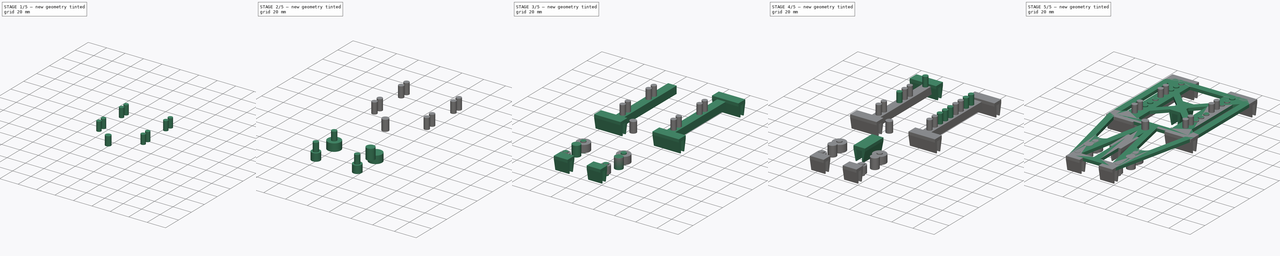
[diagram: build sequence overview — one tinted view per stage of 5, left to right]
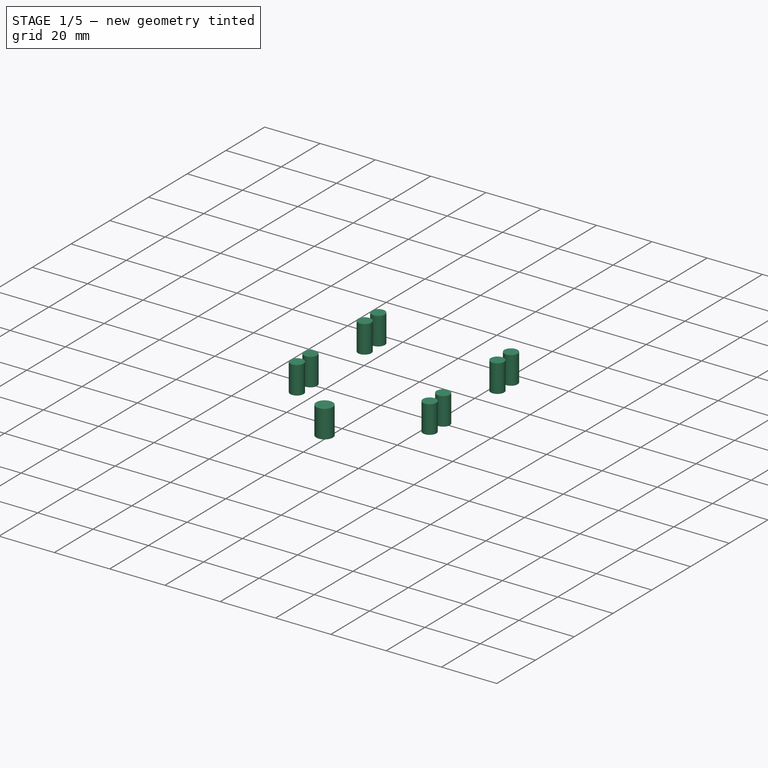
[diagram: stage 1 of 5 — iso view after this stage's code; geometry added in this stage tinted green]
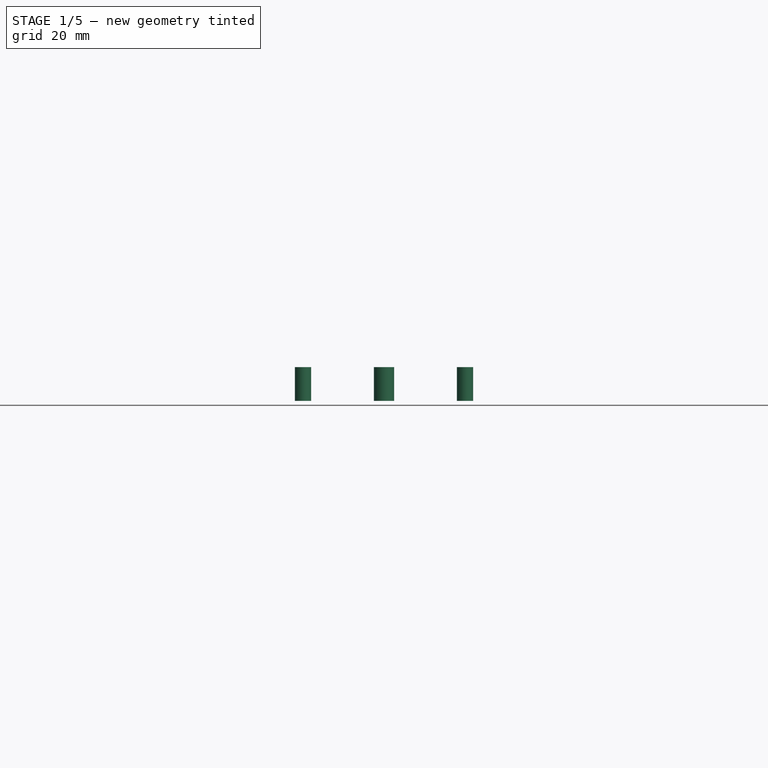
[diagram: stage 1 of 5 — front view after this stage's code; geometry added in this stage tinted green]
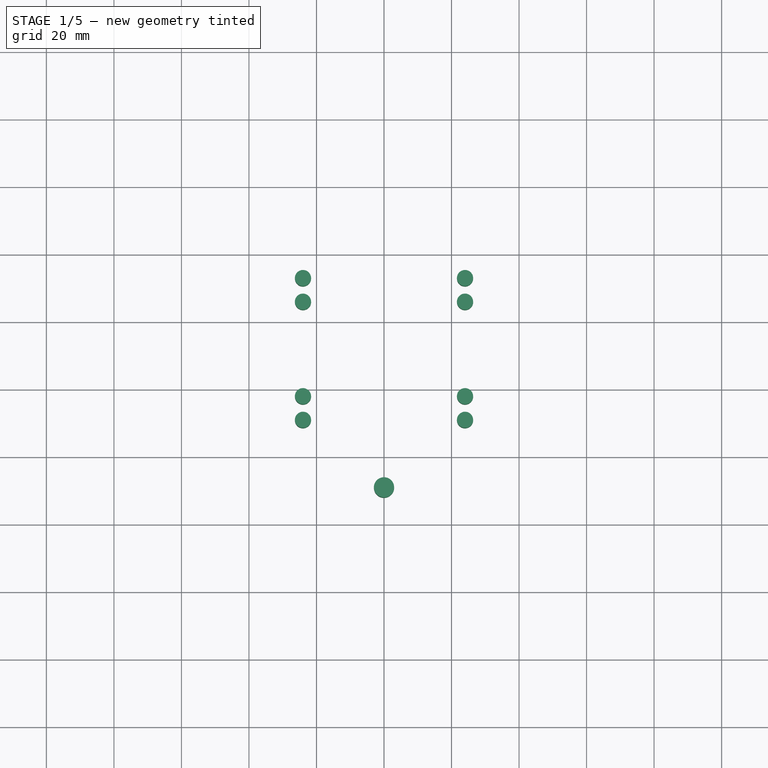
[diagram: stage 1 of 5 — top view after this stage's code; geometry added in this stage tinted green]
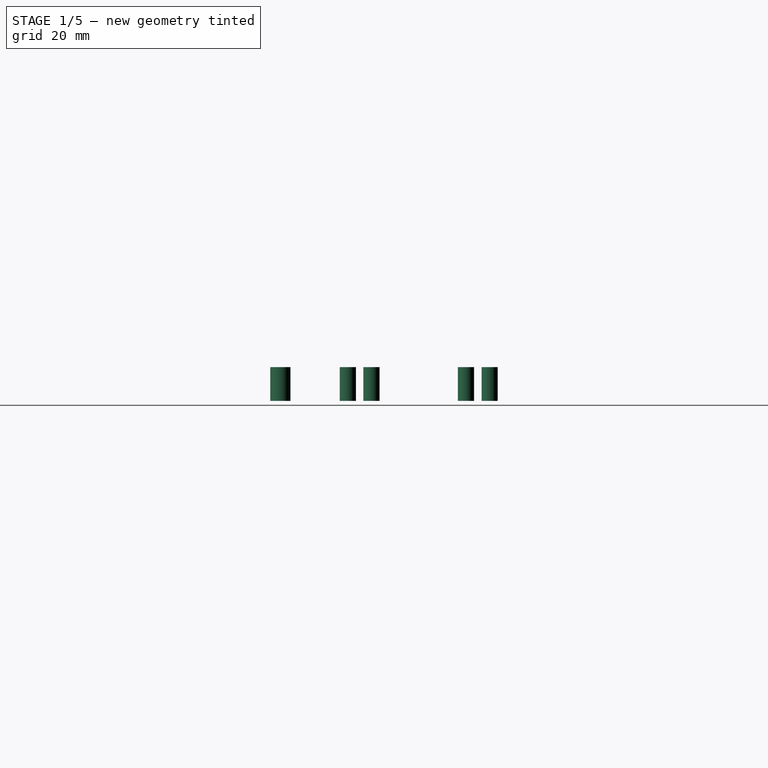
[diagram: stage 1 of 5 — right view after this stage's code; geometry added in this stage tinted green]
FCSTD DOCUMENT  (FreeCAD 0.20R0.20)
Label: 059
License: All rights reserved
LicenseURL: http://en.wikipedia.org/wiki/All_rights_reserved
objects: Part::Cylinder×31, Sketcher::SketchObject×10, Part::Extrusion×10, Part::MultiFuse×3, Part::Box×2
note: 56 computed .brp shape members not serialized (recipe doc carries the construction recipe); baked Part::Feature solids carry a one-line shape summary decoded from their .brp

FEATURE [Part::Cylinder] Cylinder022  label="threadedInsertHole018"
  Angle = 360
  AttacherType = Attacher::AttachEngine3D
  FirstAngle = 0
  Height = 10
  Placement = pos=(40,-9,0) rot=(0,0,1;0rad)
  Radius = 3
  SecondAngle = 0
FEATURE [Part::Cylinder] Cylinder023  label="threadedInsertHole019"
  Angle = 360
  AttacherType = Attacher::AttachEngine3D
  FirstAngle = 0
  Height = 10
  Placement = pos=(64,18,0) rot=(0,0,1;0rad)
  Radius = 2.4
  SecondAngle = 0
FEATURE [Part::Cylinder] Cylinder024  label="threadedInsertHole020"
  Angle = 360
  AttacherType = Attacher::AttachEngine3D
  FirstAngle = 0
  Height = 10
  Placement = pos=(64,46,0) rot=(0,0,1;0rad)
  Radius = 2.4
  SecondAngle = 0
FEATURE [Part::Cylinder] Cylinder025  label="threadedInsertHole021"
  Angle = 360
  AttacherType = Attacher::AttachEngine3D
  FirstAngle = 0
  Height = 10
  Placement = pos=(64,53,0) rot=(0,0,1;0rad)
  Radius = 2.4
  SecondAngle = 0
FEATURE [Part::Cylinder] Cylinder026  label="threadedInsertHole022"
  Angle = 360
  AttacherType = Attacher::AttachEngine3D
  FirstAngle = 0
  Height = 10
  Placement = pos=(16,53,0) rot=(0,0,1;0rad)
  Radius = 2.4
  SecondAngle = 0
FEATURE [Part::Cylinder] Cylinder027  label="threadedInsertHole023"
  Angle = 360
  AttacherType = Attacher::AttachEngine3D
  FirstAngle = 0
  Height = 10
  Placement = pos=(16,46,0) rot=(0,0,1;0rad)
  Radius = 2.4
  SecondAngle = 0
FEATURE [Part::Cylinder] Cylinder028  label="threadedInsertHole024"
  Angle = 360
  AttacherType = Attacher::AttachEngine3D
  FirstAngle = 0
  Height = 10
  Placement = pos=(16,18,0) rot=(0,0,1;0rad)
  Radius = 2.4
  SecondAngle = 0
FEATURE [Part::Cylinder] Cylinder029  label="threadedInsertHole025"
  Angle = 360
  AttacherType = Attacher::AttachEngine3D
  FirstAngle = 0
  Height = 10
  Placement = pos=(16,11,0) rot=(0,0,1;0rad)
  Radius = 2.4
  SecondAngle = 0
FEATURE [Part::Cylinder] Cylinder030  label="threadedInsertHole026"
  Angle = 360
  AttacherType = Attacher::AttachEngine3D
  FirstAngle = 0
  Height = 10
  Placement = pos=(64,11,0) rot=(0,0,1;0rad)
  Radius = 2.4
  SecondAngle = 0
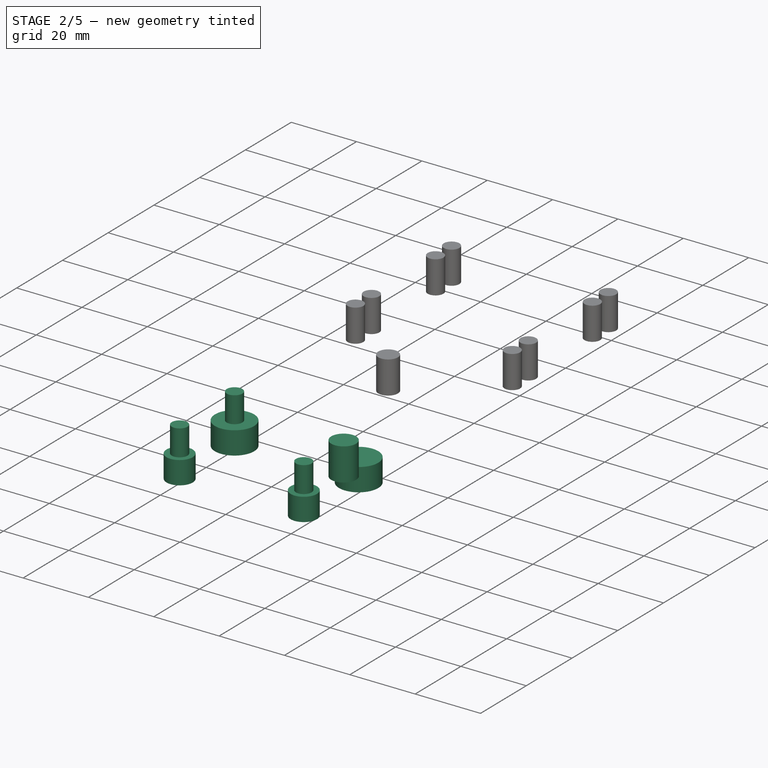
[diagram: stage 2 of 5 — iso view after this stage's code; geometry added in this stage tinted green]
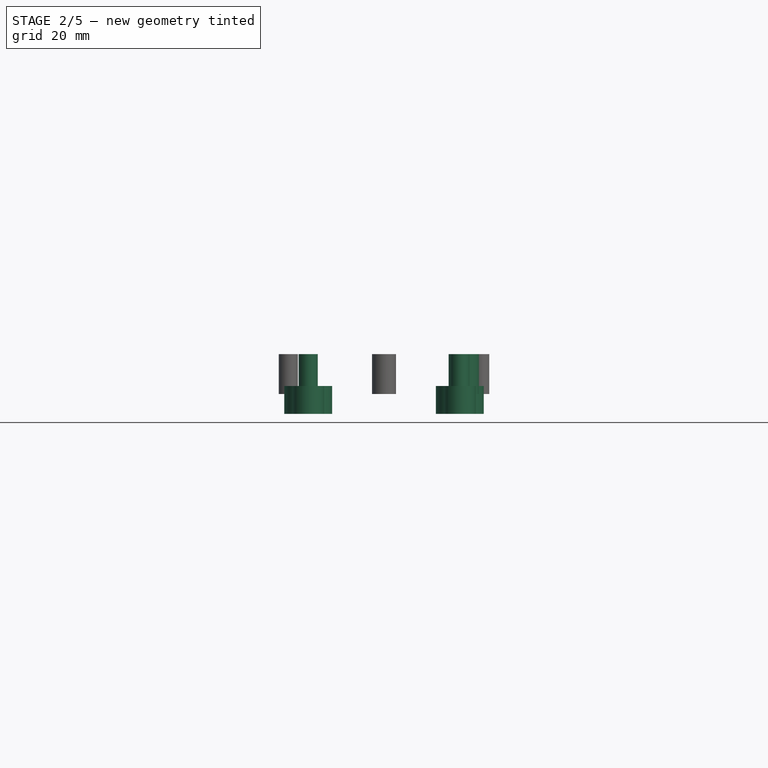
[diagram: stage 2 of 5 — front view after this stage's code; geometry added in this stage tinted green]
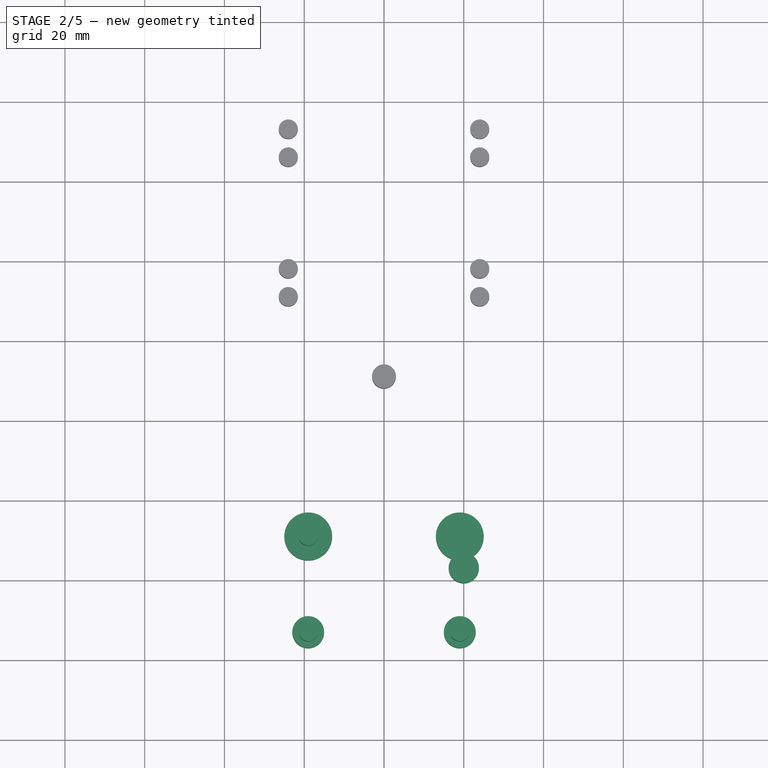
[diagram: stage 2 of 5 — top view after this stage's code; geometry added in this stage tinted green]
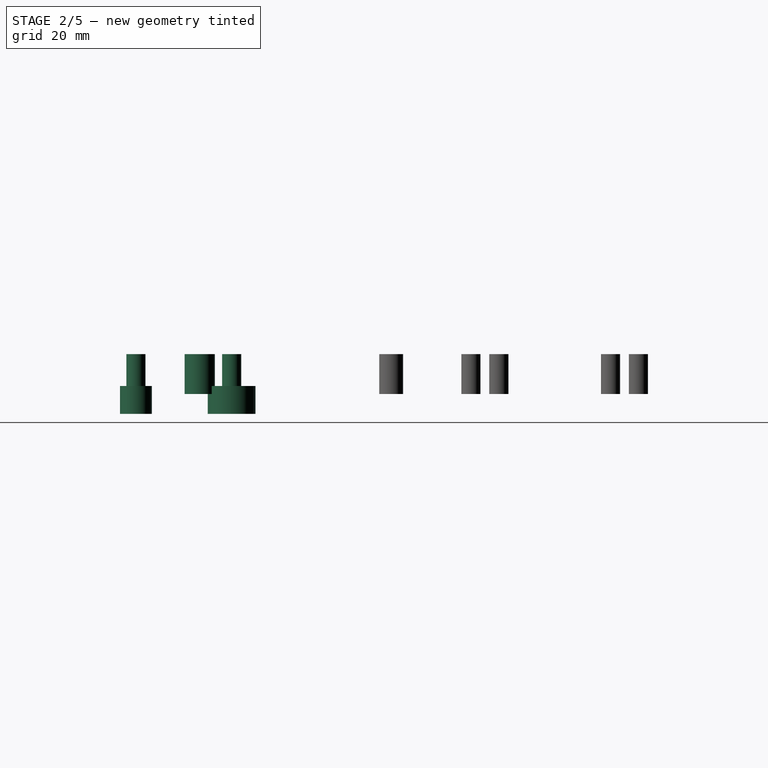
[diagram: stage 2 of 5 — right view after this stage's code; geometry added in this stage tinted green]
FEATURE [Part::Cylinder] Cylinder014  label="threadedInsertHole014"
  Angle = 360
  AttacherType = Attacher::AttachEngine3D
  FirstAngle = 0
  Height = 10
  Placement = pos=(59,-73,0) rot=(0,0,1;0rad)
  Radius = 2.4
  SecondAngle = 0
FEATURE [Part::Cylinder] Cylinder015  label="threadedInsertHole015"
  Angle = 360
  AttacherType = Attacher::AttachEngine3D
  FirstAngle = 0
  Height = 10
  Placement = pos=(21,-73,0) rot=(0,0,1;0rad)
  Radius = 2.4
  SecondAngle = 0
FEATURE [Part::Cylinder] Cylinder016  label="threadedInsertHole016"
  Angle = 360
  AttacherType = Attacher::AttachEngine3D
  FirstAngle = 0
  Height = 10
  Placement = pos=(21,-49,0) rot=(0,0,1;0rad)
  Radius = 2.4
  SecondAngle = 0
FEATURE [Part::Cylinder] Cylinder017  label="threadedInsertHole017"
  Angle = 360
  AttacherType = Attacher::AttachEngine3D
  FirstAngle = 0
  Height = 10
  Placement = pos=(60,-57,0) rot=(0,0,1;0rad)
  Radius = 3.8
  SecondAngle = 0
FEATURE [Part::Cylinder] Cylinder018  label="backThreadedInsertHolder"
  Angle = 360
  AttacherType = Attacher::AttachEngine3D
  FirstAngle = 0
  Height = 7
  Placement = pos=(21,-49,0) rot=(0,0,1;0rad)
  Radius = 6
  SecondAngle = 0
FEATURE [Part::Cylinder] Cylinder019  label="backThreadedInsertHolder001"
  Angle = 360
  AttacherType = Attacher::AttachEngine3D
  FirstAngle = 0
  Height = 7
  Placement = pos=(21,-73,0) rot=(0,0,1;0rad)
  Radius = 4
  SecondAngle = 0
FEATURE [Part::Cylinder] Cylinder020  label="backThreadedInsertHolder002"
  Angle = 360
  AttacherType = Attacher::AttachEngine3D
  FirstAngle = 0
  Height = 7
  Placement = pos=(59,-49,0) rot=(0,0,1;0rad)
  Radius = 6
  SecondAngle = 0
FEATURE [Part::Cylinder] Cylinder021  label="backThreadedInsertHolder003"
  Angle = 360
  AttacherType = Attacher::AttachEngine3D
  FirstAngle = 0
  Height = 7
  Placement = pos=(59,-73,0) rot=(0,0,1;0rad)
  Radius = 4
  SecondAngle = 0
FEATURE [Part::MultiFuse] Fusion002  label="threadedInsertHolders"
  Placement = pos=(0,0,-5) rot=(0,0,1;0rad)
  Shapes = -> [Cylinder018,Cylinder020,Cylinder021,Cylinder019]
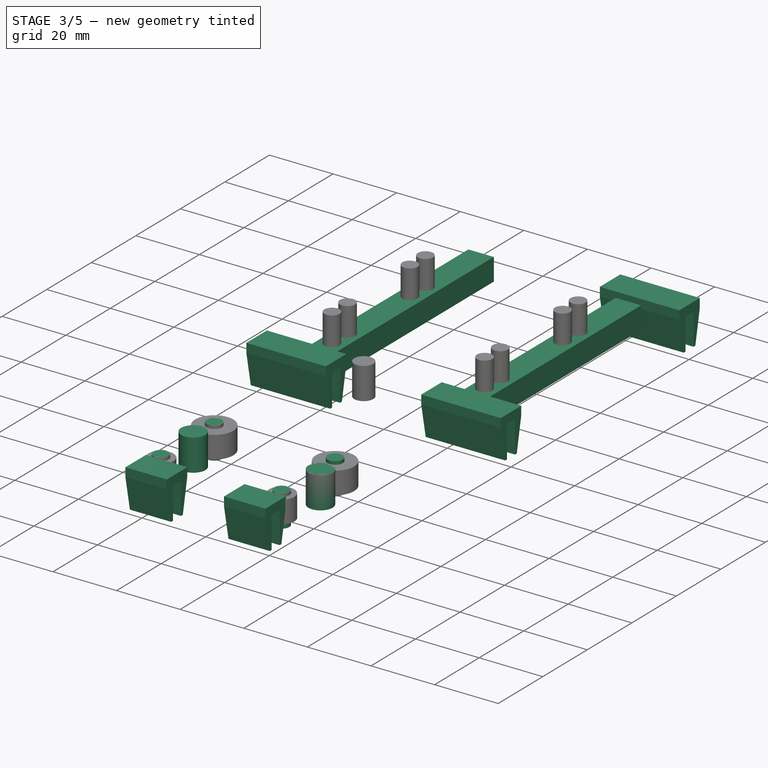
[diagram: stage 3 of 5 — iso view after this stage's code; geometry added in this stage tinted green]
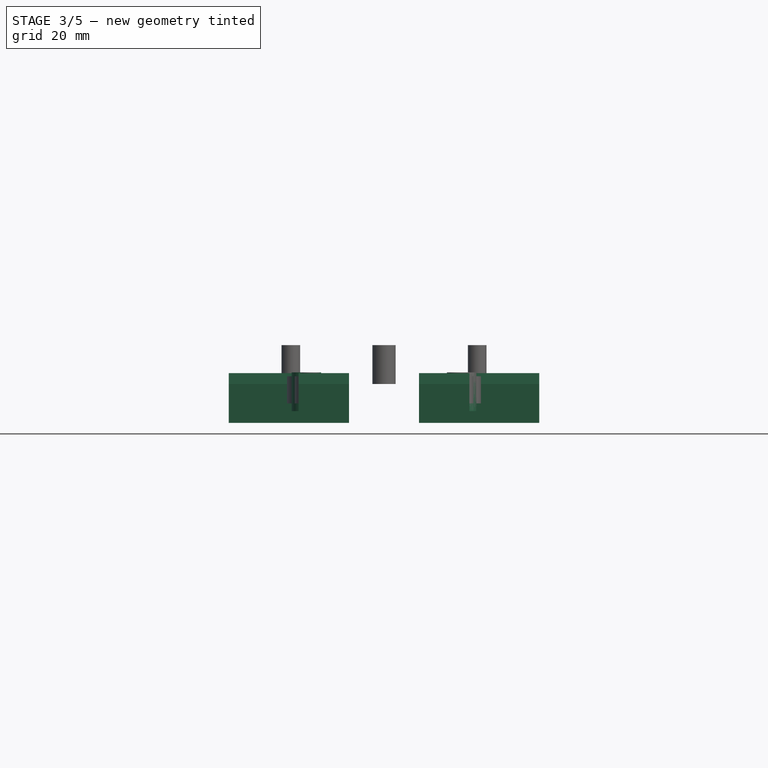
[diagram: stage 3 of 5 — front view after this stage's code; geometry added in this stage tinted green]
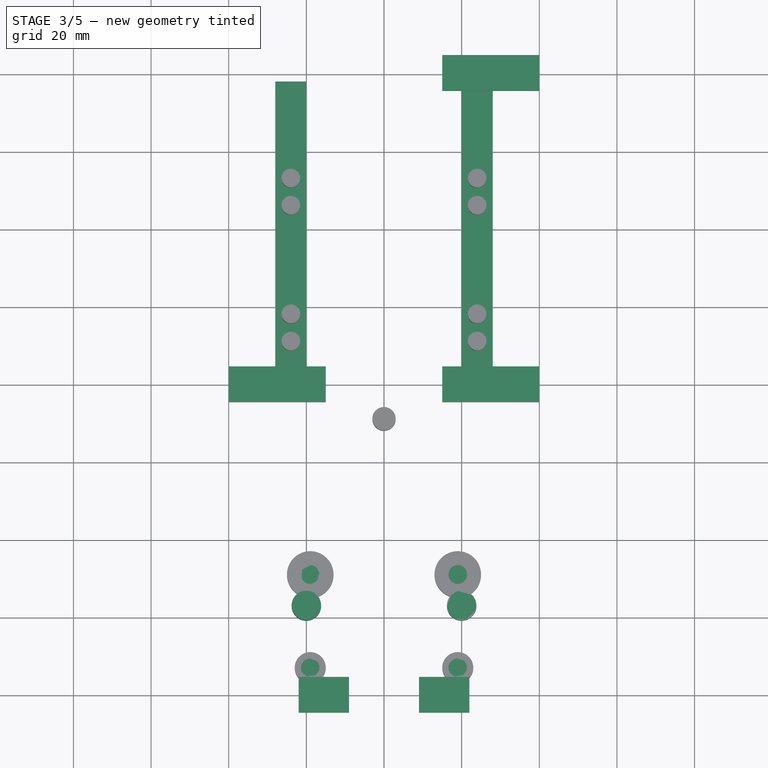
[diagram: stage 3 of 5 — top view after this stage's code; geometry added in this stage tinted green]
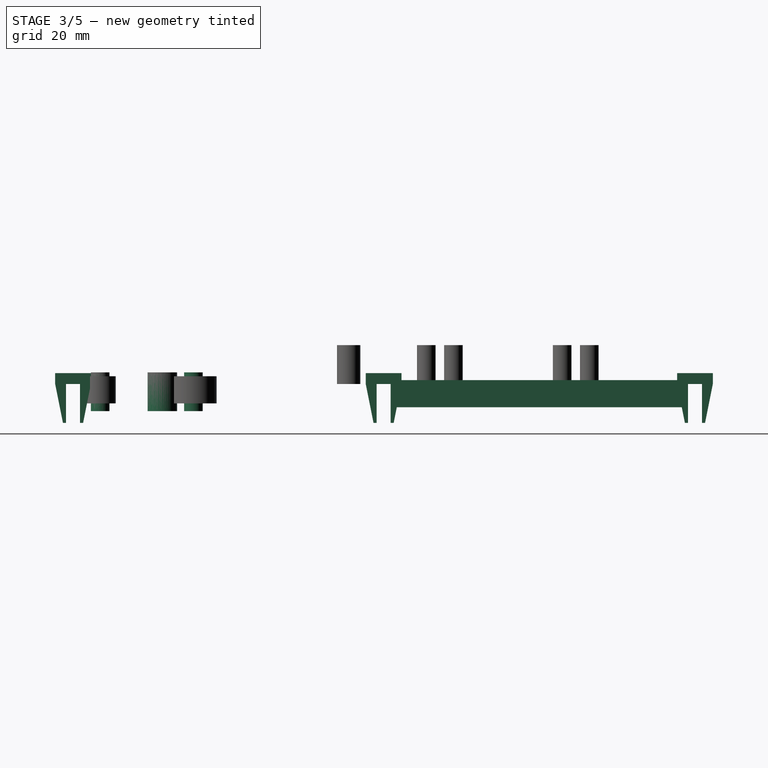
[diagram: stage 3 of 5 — right view after this stage's code; geometry added in this stage tinted green]
FEATURE [Part::Cylinder] Cylinder012  label="threadedInsertHole012"
  Angle = 360
  AttacherType = Attacher::AttachEngine3D
  FirstAngle = 0
  Height = 10
  Placement = pos=(59,-49,0) rot=(0,0,1;0rad)
  Radius = 2.4
  SecondAngle = 0
FEATURE [Part::Cylinder] Cylinder013  label="threadedInsertHole013"
  Angle = 360
  AttacherType = Attacher::AttachEngine3D
  FirstAngle = 0
  Height = 10
  Placement = pos=(20,-57,0) rot=(0,0,1;0rad)
  Radius = 3.8
  SecondAngle = 0
FEATURE [Sketcher::SketchObject] Sketch015
  FullyConstrained = true
  Placement = pos=(0,0,0) rot=(1,0,0;1.5708rad)
  sketch-geometry (10):
    g0: LineSegment StartX=5 StartY=-14 StartZ=0 EndX=8.6 EndY=-14 EndZ=0
    g1: LineSegment StartX=5 StartY=-14 StartZ=0 EndX=5 EndY=-24 EndZ=0
    g2: LineSegment StartX=8.6 StartY=-14 StartZ=0 EndX=8.6 EndY=-24 EndZ=0
    g3: LineSegment StartX=2.2 StartY=-11.2 StartZ=0 EndX=11.4 EndY=-11.2 EndZ=0
    g4: LineSegment StartX=5 StartY=-24 StartZ=0 EndX=4.2 EndY=-24 EndZ=0
    g5: LineSegment StartX=8.6 StartY=-24 StartZ=0 EndX=9.4 EndY=-24 EndZ=0
    g6: LineSegment StartX=2.2 StartY=-14 StartZ=0 EndX=2.2 EndY=-11.2 EndZ=0
    g7: LineSegment StartX=11.4 StartY=-14 StartZ=0 EndX=11.4 EndY=-11.2 EndZ=0
    g8: LineSegment StartX=2.2 StartY=-14 StartZ=0 EndX=4.2 EndY=-24 EndZ=0
    g9: LineSegment StartX=9.4 StartY=-24 StartZ=0 EndX=11.4 EndY=-14 EndZ=0
  constraints (26):
    c: Horizontal(g0)
    c: Block(g0)
    c: Distance(g0) = 3.6
    c: Coincident(g1,g0)
    c: Vertical(g1)
    c: Distance(g1) = 10
    c: Coincident(g2,g0)
    c: Vertical(g2)
    c: Distance(g2) = 10
    c: Horizontal(g3)
    c: Coincident(g4,g1)
    c: Horizontal(g4)
    c: Coincident(g5,g2)
    c: Horizontal(g5)
    c: Distance(g4) = 0.8
    c: Distance(g5) = 0.8
    c: Vertical(g6)
    c: Vertical(g7)
    c: Coincident(g8,g4)
    c: Coincident(g9,g5)
    c: Coincident(g3,g6)
    c: Coincident(g3,g7)
    c: Block(g7)
    c: Block(g6)
    c: Block(g8)
    c: Block(g9)
FEATURE [Part::Extrusion] Extrude015  label="hullBrace013"
  Base = -> Sketch015
  Dir = (0,-1,2e-16)
  DirMode = 2
  FaceMakerClass = Part::FaceMakerBullseye
  LengthFwd = 13
  LengthRev = 0
  Placement = pos=(18,-86.8,14) rot=(0,0,1;1.5708rad)
  Solid = true
  Symmetric = false
FEATURE [Sketcher::SketchObject] Sketch016
  FullyConstrained = true
  Placement = pos=(0,0,0) rot=(1,0,0;1.5708rad)
  sketch-geometry (10):
    g0: LineSegment StartX=5 StartY=-14 StartZ=0 EndX=8.6 EndY=-14 EndZ=0
    g1: LineSegment StartX=5 StartY=-14 StartZ=0 EndX=5 EndY=-24 EndZ=0
    g2: LineSegment StartX=8.6 StartY=-14 StartZ=0 EndX=8.6 EndY=-24 EndZ=0
    g3: LineSegment StartX=2.2 StartY=-11.2 StartZ=0 EndX=11.4 EndY=-11.2 EndZ=0
    g4: LineSegment StartX=5 StartY=-24 StartZ=0 EndX=4.2 EndY=-24 EndZ=0
    g5: LineSegment StartX=8.6 StartY=-24 StartZ=0 EndX=9.4 EndY=-24 EndZ=0
    g6: LineSegment StartX=2.2 StartY=-14 StartZ=0 EndX=2.2 EndY=-11.2 EndZ=0
    g7: LineSegment StartX=11.4 StartY=-14 StartZ=0 EndX=11.4 EndY=-11.2 EndZ=0
    g8: LineSegment StartX=2.2 StartY=-14 StartZ=0 EndX=4.2 EndY=-24 EndZ=0
    g9: LineSegment StartX=9.4 StartY=-24 StartZ=0 EndX=11.4 EndY=-14 EndZ=0
  constraints (26):
    c: Horizontal(g0)
    c: Block(g0)
    c: Distance(g0) = 3.6
    c: Coincident(g1,g0)
    c: Vertical(g1)
    c: Distance(g1) = 10
    c: Coincident(g2,g0)
    c: Vertical(g2)
    c: Distance(g2) = 10
    c: Horizontal(g3)
    c: Coincident(g4,g1)
    c: Horizontal(g4)
    c: Coincident(g5,g2)
    c: Horizontal(g5)
    c: Distance(g4) = 0.8
    c: Distance(g5) = 0.8
    c: Vertical(g6)
    c: Vertical(g7)
    c: Coincident(g8,g4)
    c: Coincident(g9,g5)
    c: Coincident(g3,g6)
    c: Coincident(g3,g7)
    c: Block(g7)
    c: Block(g6)
    c: Block(g8)
    c: Block(g9)
FEATURE [Part::Extrusion] Extrude016  label="hullBrace014"
  Base = -> Sketch016
  Dir = (0,-1,2e-16)
  DirMode = 2
  FaceMakerClass = Part::FaceMakerBullseye
  LengthFwd = 13
  LengthRev = 0
  Placement = pos=(49,-86.8,14) rot=(0,0,1;1.5708rad)
  Solid = true
  Symmetric = false
FEATURE [Sketcher::SketchObject] Sketch017
  FullyConstrained = true
  Placement = pos=(0,0,0) rot=(1,0,0;1.5708rad)
  sketch-geometry (10):
    g0: LineSegment StartX=5 StartY=-14 StartZ=0 EndX=8.6 EndY=-14 EndZ=0
    g1: LineSegment StartX=5 StartY=-14 StartZ=0 EndX=5 EndY=-24 EndZ=0
    g2: LineSegment StartX=8.6 StartY=-14 StartZ=0 EndX=8.6 EndY=-24 EndZ=0
    g3: LineSegment StartX=2.2 StartY=-11.2 StartZ=0 EndX=11.4 EndY=-11.2 EndZ=0
    g4: LineSegment StartX=5 StartY=-24 StartZ=0 EndX=4.2 EndY=-24 EndZ=0
    g5: LineSegment StartX=8.6 StartY=-24 StartZ=0 EndX=9.4 EndY=-24 EndZ=0
    g6: LineSegment StartX=2.2 StartY=-14 StartZ=0 EndX=2.2 EndY=-11.2 EndZ=0
    g7: LineSegment StartX=11.4 StartY=-14 StartZ=0 EndX=11.4 EndY=-11.2 EndZ=0
    g8: LineSegment StartX=2.2 StartY=-14 StartZ=0 EndX=4.2 EndY=-24 EndZ=0
    g9: LineSegment StartX=9.4 StartY=-24 StartZ=0 EndX=11.4 EndY=-14 EndZ=0
  constraints (26):
    c: Horizontal(g0)
    c: Block(g0)
    c: Distance(g0) = 3.6
    c: Coincident(g1,g0)
    c: Vertical(g1)
    c: Distance(g1) = 10
    c: Coincident(g2,g0)
    c: Vertical(g2)
    c: Distance(g2) = 10
    c: Horizontal(g3)
    c: Coincident(g4,g1)
    c: Horizontal(g4)
    c: Coincident(g5,g2)
    c: Horizontal(g5)
    c: Distance(g4) = 0.8
    c: Distance(g5) = 0.8
    c: Vertical(g6)
    c: Vertical(g7)
    c: Coincident(g8,g4)
    c: Coincident(g9,g5)
    c: Coincident(g3,g6)
    c: Coincident(g3,g7)
    c: Block(g7)
    c: Block(g6)
    c: Block(g8)
    c: Block(g9)
FEATURE [Part::Extrusion] Extrude017  label="hullBrace015"
  Base = -> Sketch017
  Dir = (0,-1,2e-16)
  DirMode = 2
  FaceMakerClass = Part::FaceMakerBullseye
  LengthFwd = 25
  LengthRev = 0
  Placement = pos=(55,-6.8,14) rot=(0,0,1;1.5708rad)
  Solid = true
  Symmetric = false
FEATURE [Sketcher::SketchObject] Sketch018
  FullyConstrained = true
  Placement = pos=(0,0,0) rot=(1,0,0;1.5708rad)
  sketch-geometry (10):
    g0: LineSegment StartX=5 StartY=-14 StartZ=0 EndX=8.6 EndY=-14 EndZ=0
    g1: LineSegment StartX=5 StartY=-14 StartZ=0 EndX=5 EndY=-24 EndZ=0
    g2: LineSegment StartX=8.6 StartY=-14 StartZ=0 EndX=8.6 EndY=-24 EndZ=0
    g3: LineSegment StartX=2.2 StartY=-11.2 StartZ=0 EndX=11.4 EndY=-11.2 EndZ=0
    g4: LineSegment StartX=5 StartY=-24 StartZ=0 EndX=4.2 EndY=-24 EndZ=0
    g5: LineSegment StartX=8.6 StartY=-24 StartZ=0 EndX=9.4 EndY=-24 EndZ=0
    g6: LineSegment StartX=2.2 StartY=-14 StartZ=0 EndX=2.2 EndY=-11.2 EndZ=0
    g7: LineSegment StartX=11.4 StartY=-14 StartZ=0 EndX=11.4 EndY=-11.2 EndZ=0
    g8: LineSegment StartX=2.2 StartY=-14 StartZ=0 EndX=4.2 EndY=-24 EndZ=0
    g9: LineSegment StartX=9.4 StartY=-24 StartZ=0 EndX=11.4 EndY=-14 EndZ=0
  constraints (26):
    c: Horizontal(g0)
    c: Block(g0)
    c: Distance(g0) = 3.6
    c: Coincident(g1,g0)
    c: Vertical(g1)
    c: Distance(g1) = 10
    c: Coincident(g2,g0)
    c: Vertical(g2)
    c: Distance(g2) = 10
    c: Horizontal(g3)
    c: Coincident(g4,g1)
    c: Horizontal(g4)
    c: Coincident(g5,g2)
    c: Horizontal(g5)
    c: Distance(g4) = 0.8
    c: Distance(g5) = 0.8
    c: Vertical(g6)
    c: Vertical(g7)
    c: Coincident(g8,g4)
    c: Coincident(g9,g5)
    c: Coincident(g3,g6)
    c: Coincident(g3,g7)
    c: Block(g7)
    c: Block(g6)
    c: Block(g8)
    c: Block(g9)
FEATURE [Part::Extrusion] Extrude018  label="hullBrace016"
  Base = -> Sketch018
  Dir = (0,-1,2e-16)
  DirMode = 2
  FaceMakerClass = Part::FaceMakerBullseye
  LengthFwd = 25
  LengthRev = 0
  Placement = pos=(0,-6.8,14) rot=(0,0,1;1.5708rad)
  Solid = true
  Symmetric = false
FEATURE [Sketcher::SketchObject] Sketch019
  FullyConstrained = true
  Placement = pos=(0,0,0) rot=(1,0,0;1.5708rad)
  sketch-geometry (10):
    g0: LineSegment StartX=5 StartY=-14 StartZ=0 EndX=8.6 EndY=-14 EndZ=0
    g1: LineSegment StartX=5 StartY=-14 StartZ=0 EndX=5 EndY=-24 EndZ=0
    g2: LineSegment StartX=8.6 StartY=-14 StartZ=0 EndX=8.6 EndY=-24 EndZ=0
    g3: LineSegment StartX=2.2 StartY=-11.2 StartZ=0 EndX=11.4 EndY=-11.2 EndZ=0
    g4: LineSegment StartX=5 StartY=-24 StartZ=0 EndX=4.2 EndY=-24 EndZ=0
    g5: LineSegment StartX=8.6 StartY=-24 StartZ=0 EndX=9.4 EndY=-24 EndZ=0
    g6: LineSegment StartX=2.2 StartY=-14 StartZ=0 EndX=2.2 EndY=-11.2 EndZ=0
    g7: LineSegment StartX=11.4 StartY=-14 StartZ=0 EndX=11.4 EndY=-11.2 EndZ=0
    g8: LineSegment StartX=2.2 StartY=-14 StartZ=0 EndX=4.2 EndY=-24 EndZ=0
    g9: LineSegment StartX=9.4 StartY=-24 StartZ=0 EndX=11.4 EndY=-14 EndZ=0
  constraints (26):
    c: Horizontal(g0)
    c: Block(g0)
    c: Distance(g0) = 3.6
    c: Coincident(g1,g0)
    c: Vertical(g1)
    c: Distance(g1) = 10
    c: Coincident(g2,g0)
    c: Vertical(g2)
    c: Distance(g2) = 10
    c: Horizontal(g3)
    c: Coincident(g4,g1)
    c: Horizontal(g4)
    c: Coincident(g5,g2)
    c: Horizontal(g5)
    c: Distance(g4) = 0.8
    c: Distance(g5) = 0.8
    c: Vertical(g6)
    c: Vertical(g7)
    c: Coincident(g8,g4)
    c: Coincident(g9,g5)
    c: Coincident(g3,g6)
    c: Coincident(g3,g7)
    c: Block(g7)
    c: Block(g6)
    c: Block(g8)
    c: Block(g9)
FEATURE [Part::Extrusion] Extrude019  label="hullBrace017"
  Base = -> Sketch019
  Dir = (0,-1,2e-16)
  DirMode = 2
  FaceMakerClass = Part::FaceMakerBullseye
  LengthFwd = 25
  LengthRev = 0
  Placement = pos=(55,73.4,14) rot=(0,0,1;1.5708rad)
  Solid = true
  Symmetric = false
FEATURE [Part::Box] Box  label="screwHoleAndStrut"
  AttacherType = Attacher::AttachEngine3D
  Height = 7
  Length = 8
  Placement = pos=(12,3,-6) rot=(0,0,1;0rad)
  Width = 75
FEATURE [Part::Box] Box001  label="screwHoleAndStrut001"
  AttacherType = Attacher::AttachEngine3D
  Height = 7
  Length = 8
  Placement = pos=(60,3,-6) rot=(0,0,1;0rad)
  Width = 75
FEATURE [Part::MultiFuse] Fusion001  label="threadedInsertHoleAndWeaightSavingHole"
  Placement = pos=(0,0,-7) rot=(0,0,1;0rad)
  Shapes = -> [Cylinder016,Cylinder013,Cylinder015,Cylinder014,Cylinder017,Cylinder012]
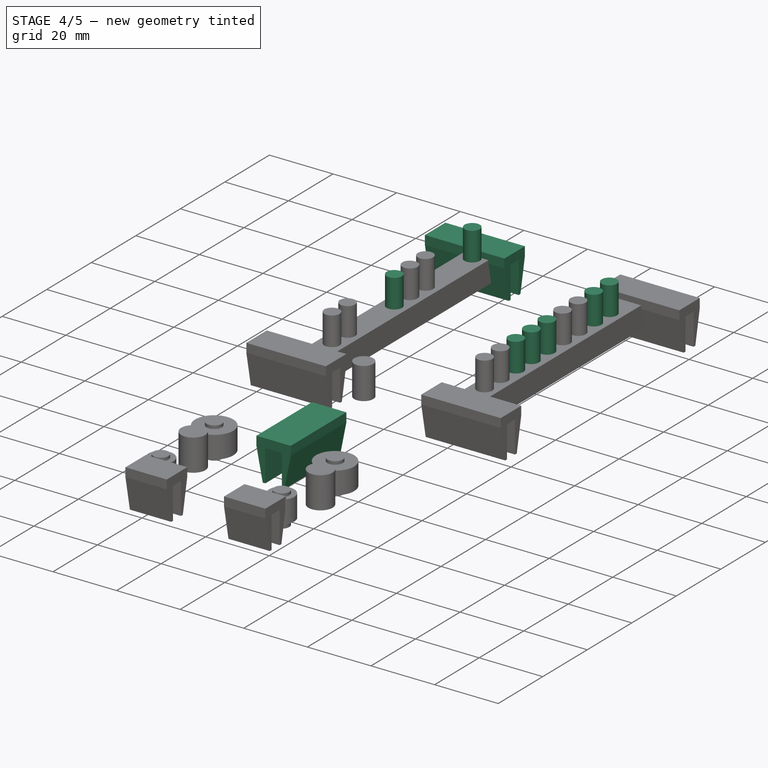
[diagram: stage 4 of 5 — iso view after this stage's code; geometry added in this stage tinted green]
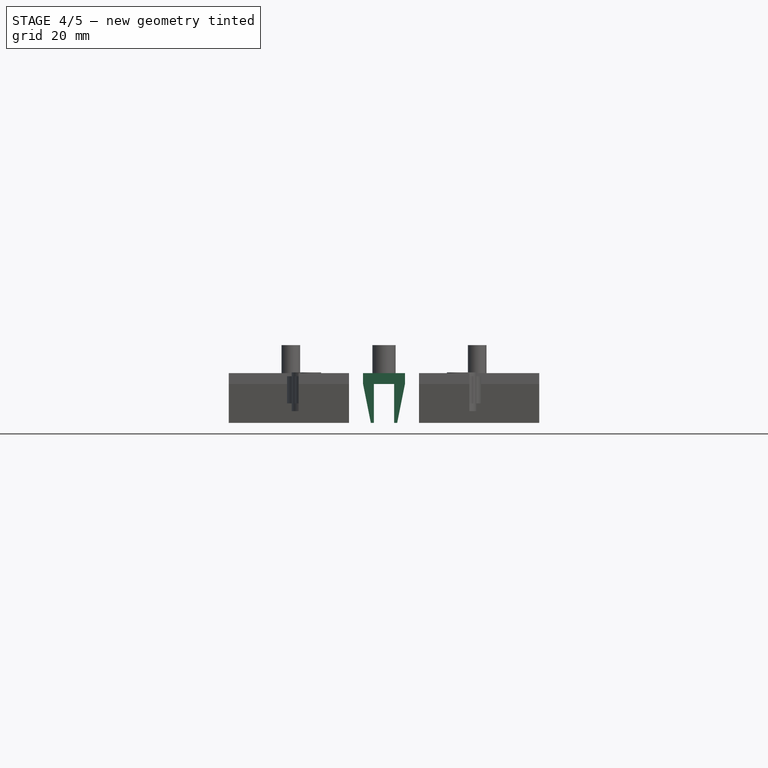
[diagram: stage 4 of 5 — front view after this stage's code; geometry added in this stage tinted green]
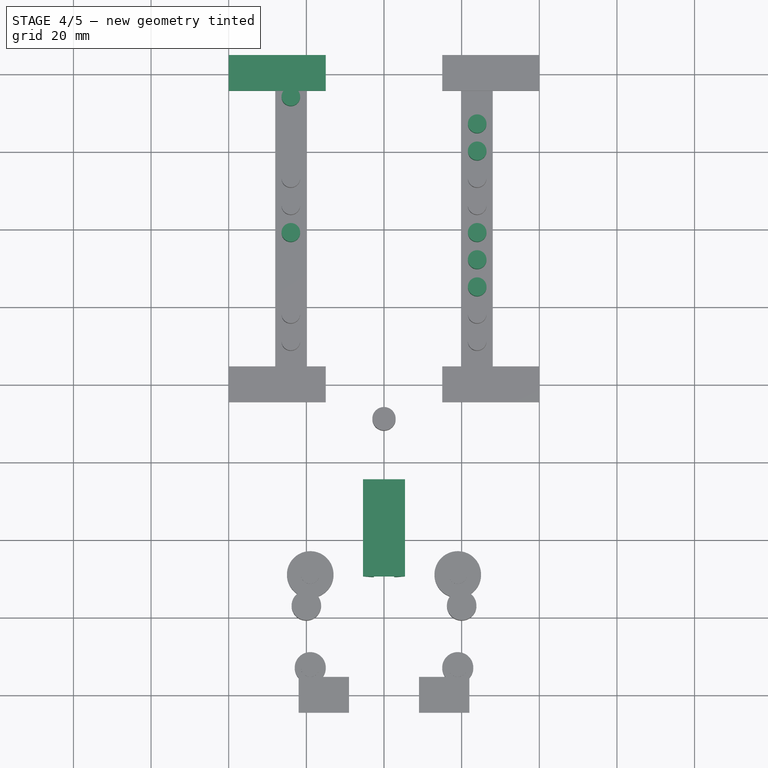
[diagram: stage 4 of 5 — top view after this stage's code; geometry added in this stage tinted green]
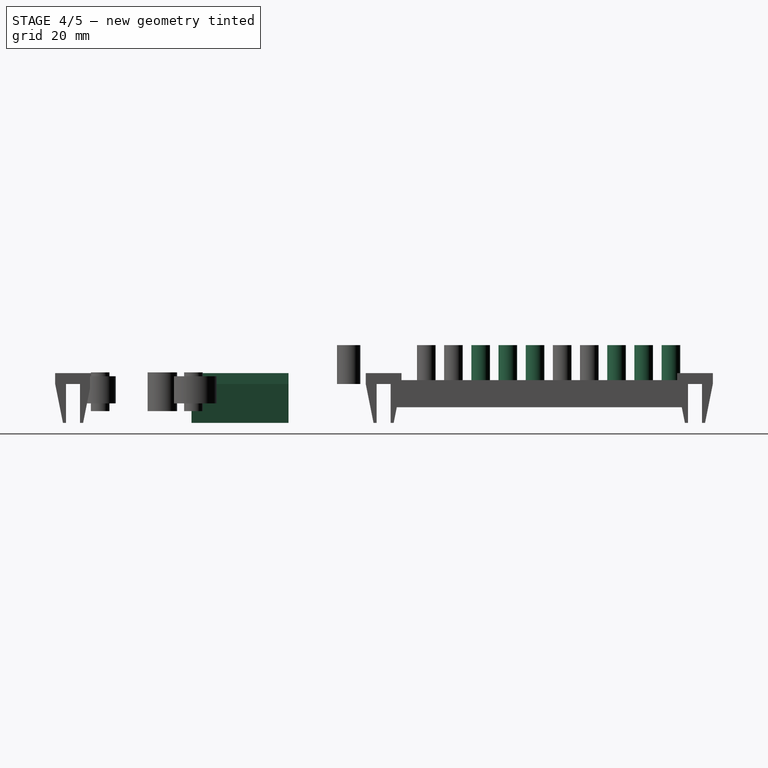
[diagram: stage 4 of 5 — right view after this stage's code; geometry added in this stage tinted green]
FEATURE [Part::Cylinder] Cylinder005  label="threadedInsertHole005"
  Angle = 360
  AttacherType = Attacher::AttachEngine3D
  FirstAngle = 0
  Height = 10
  Placement = pos=(16,39,0) rot=(0,0,1;0rad)
  Radius = 2.4
  SecondAngle = 0
FEATURE [Part::Cylinder] Cylinder006  label="threadedInsertHole006"
  Angle = 360
  AttacherType = Attacher::AttachEngine3D
  FirstAngle = 0
  Height = 10
  Placement = pos=(16,74,0) rot=(0,0,1;0rad)
  Radius = 2.4
  SecondAngle = 0
FEATURE [Part::Cylinder] Cylinder007  label="threadedInsertHole007"
  Angle = 360
  AttacherType = Attacher::AttachEngine3D
  FirstAngle = 0
  Height = 10
  Placement = pos=(64,67,0) rot=(0,0,1;0rad)
  Radius = 2.4
  SecondAngle = 0
FEATURE [Part::Cylinder] Cylinder008  label="threadedInsertHole008"
  Angle = 360
  AttacherType = Attacher::AttachEngine3D
  FirstAngle = 0
  Height = 10
  Placement = pos=(64,60,0) rot=(0,0,1;0rad)
  Radius = 2.4
  SecondAngle = 0
FEATURE [Part::Cylinder] Cylinder009  label="threadedInsertHole009"
  Angle = 360
  AttacherType = Attacher::AttachEngine3D
  FirstAngle = 0
  Height = 10
  Placement = pos=(64,39,0) rot=(0,0,1;0rad)
  Radius = 2.4
  SecondAngle = 0
FEATURE [Part::Cylinder] Cylinder010  label="threadedInsertHole010"
  Angle = 360
  AttacherType = Attacher::AttachEngine3D
  FirstAngle = 0
  Height = 10
  Placement = pos=(64,32,0) rot=(0,0,1;0rad)
  Radius = 2.4
  SecondAngle = 0
FEATURE [Part::Cylinder] Cylinder011  label="threadedInsertHole011"
  Angle = 360
  AttacherType = Attacher::AttachEngine3D
  FirstAngle = 0
  Height = 10
  Placement = pos=(64,25,0) rot=(0,0,1;0rad)
  Radius = 2.4
  SecondAngle = 0
FEATURE [Sketcher::SketchObject] Sketch013
  FullyConstrained = true
  Placement = pos=(0,0,0) rot=(1,0,0;1.5708rad)
  sketch-geometry (10):
    g0: LineSegment StartX=5 StartY=-14 StartZ=0 EndX=8.6 EndY=-14 EndZ=0
    g1: LineSegment StartX=5 StartY=-14 StartZ=0 EndX=5 EndY=-24 EndZ=0
    g2: LineSegment StartX=8.6 StartY=-14 StartZ=0 EndX=8.6 EndY=-24 EndZ=0
    g3: LineSegment StartX=2.2 StartY=-11.2 StartZ=0 EndX=11.4 EndY=-11.2 EndZ=0
    g4: LineSegment StartX=5 StartY=-24 StartZ=0 EndX=4.2 EndY=-24 EndZ=0
    g5: LineSegment StartX=8.6 StartY=-24 StartZ=0 EndX=9.4 EndY=-24 EndZ=0
    g6: LineSegment StartX=2.2 StartY=-14 StartZ=0 EndX=2.2 EndY=-11.2 EndZ=0
    g7: LineSegment StartX=11.4 StartY=-14 StartZ=0 EndX=11.4 EndY=-11.2 EndZ=0
    g8: LineSegment StartX=2.2 StartY=-14 StartZ=0 EndX=4.2 EndY=-24 EndZ=0
    g9: LineSegment StartX=9.4 StartY=-24 StartZ=0 EndX=11.4 EndY=-14 EndZ=0
  constraints (26):
    c: Horizontal(g0)
    c: Block(g0)
    c: Distance(g0) = 3.6
    c: Coincident(g1,g0)
    c: Vertical(g1)
    c: Distance(g1) = 10
    c: Coincident(g2,g0)
    c: Vertical(g2)
    c: Distance(g2) = 10
    c: Horizontal(g3)
    c: Coincident(g4,g1)
    c: Horizontal(g4)
    c: Coincident(g5,g2)
    c: Horizontal(g5)
    c: Distance(g4) = 0.8
    c: Distance(g5) = 0.8
    c: Vertical(g6)
    c: Vertical(g7)
    c: Coincident(g8,g4)
    c: Coincident(g9,g5)
    c: Coincident(g3,g6)
    c: Coincident(g3,g7)
    c: Block(g7)
    c: Block(g6)
    c: Block(g8)
    c: Block(g9)
FEATURE [Part::Extrusion] Extrude013  label="hullBrace011"
  Base = -> Sketch013
  Dir = (0,-1,2e-16)
  DirMode = 2
  FaceMakerClass = Part::FaceMakerBullseye
  LengthFwd = 25
  LengthRev = 0
  Placement = pos=(0,73.4,14) rot=(0,0,1;1.5708rad)
  Solid = true
  Symmetric = false
FEATURE [Sketcher::SketchObject] Sketch014
  FullyConstrained = true
  Placement = pos=(0,0,0) rot=(1,0,0;1.5708rad)
  sketch-geometry (10):
    g0: LineSegment StartX=5.2 StartY=-14 StartZ=0 EndX=10.4 EndY=-14 EndZ=0
    g1: LineSegment StartX=10.4 StartY=-14 StartZ=0 EndX=10.4 EndY=-24 EndZ=0
    g2: LineSegment StartX=5.2 StartY=-14 StartZ=0 EndX=5.2 EndY=-24 EndZ=0
    g3: LineSegment StartX=10.4 StartY=-24 StartZ=0 EndX=11.2 EndY=-24 EndZ=0
    g4: LineSegment StartX=5.2 StartY=-24 StartZ=0 EndX=4.4 EndY=-24 EndZ=0
    g5: LineSegment StartX=13.2 StartY=-14 StartZ=0 EndX=13.2 EndY=-11.2 EndZ=0
    g6: LineSegment StartX=2.4 StartY=-14 StartZ=0 EndX=2.4 EndY=-11.2 EndZ=0
    g7: LineSegment StartX=13.2 StartY=-11.2 StartZ=0 EndX=2.4 EndY=-11.2 EndZ=0
    g8: LineSegment StartX=2.4 StartY=-14 StartZ=0 EndX=4.4 EndY=-24 EndZ=0
    g9: LineSegment StartX=13.2 StartY=-14 StartZ=0 EndX=11.2 EndY=-24 EndZ=0
  constraints (26):
    c: Horizontal(g0)
    c: Block(g0)
    c: Coincident(g1,g0)
    c: Vertical(g1)
    c: Coincident(g2,g0)
    c: Vertical(g2)
    c: Distance(g2) = 10
    c: Distance(g1) = 10
    c: Coincident(g3,g1)
    c: Horizontal(g3)
    c: Coincident(g4,g2)
    c: Horizontal(g4)
    c: Distance(g4) = 0.8
    c: Distance(g3) = 0.8
    c: Vertical(g5)
    c: Distance(g5) = 2.8
    c: Vertical(g6)
    c: Coincident(g7,g5)
    c: Horizontal(g7)
    c: Coincident(g8,g4)
    c: Coincident(g9,g3)
    c: Coincident(g7,g6)
    c: Block(g9)
    c: Block(g8)
    c: Block(g6)
    c: Block(g7)
FEATURE [Part::Extrusion] Extrude014  label="hullBrace012"
  Base = -> Sketch014
  Dir = (0,-1,2e-16)
  DirMode = 2
  FaceMakerClass = Part::FaceMakerBullseye
  LengthFwd = 25
  LengthRev = 0
  Placement = pos=(32.2,-24.5,14) rot=(0,0,1;0rad)
  Solid = true
  Symmetric = false
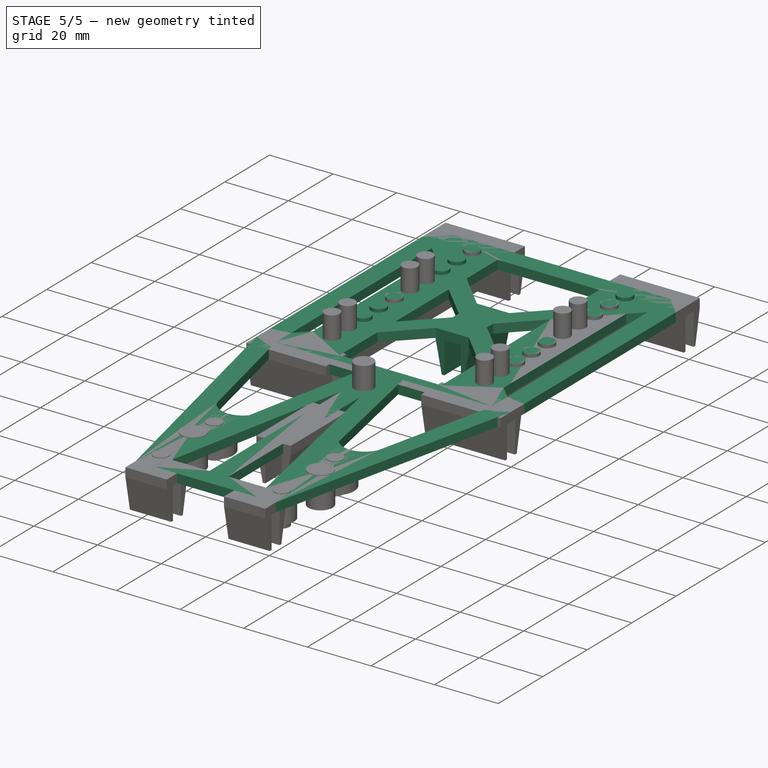
[diagram: stage 5 of 5 — iso view after this stage's code; geometry added in this stage tinted green]
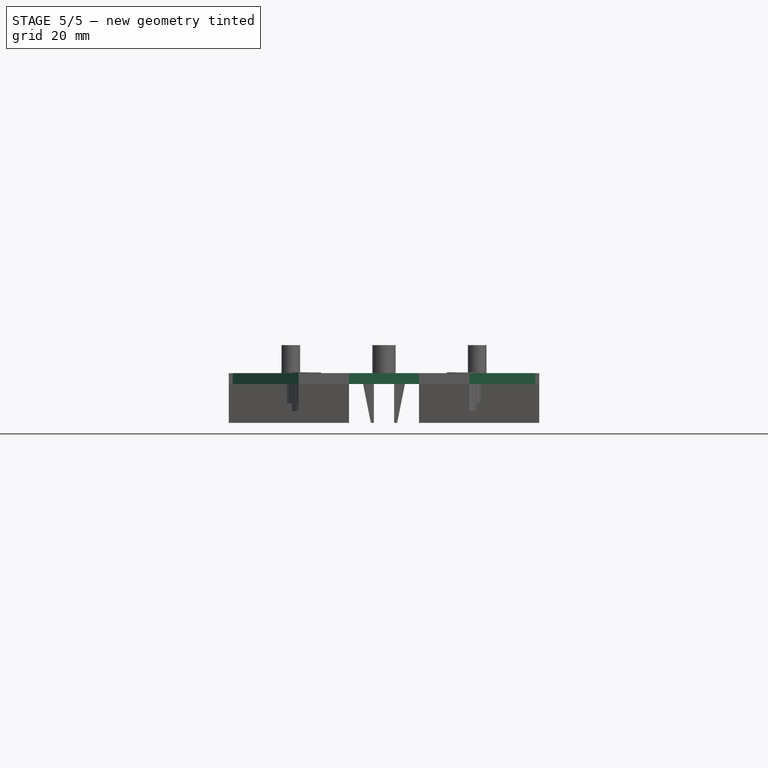
[diagram: stage 5 of 5 — front view after this stage's code; geometry added in this stage tinted green]
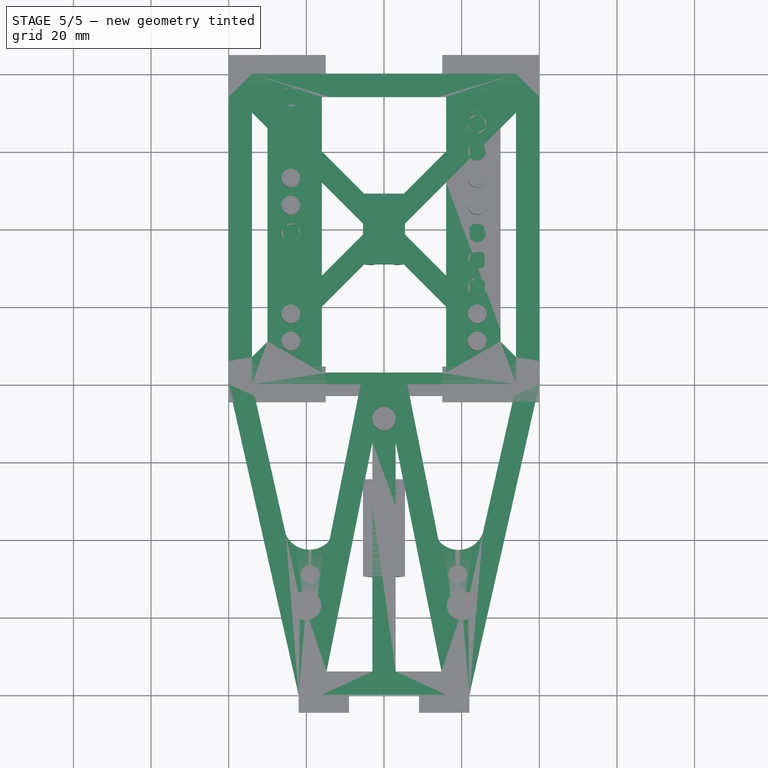
[diagram: stage 5 of 5 — top view after this stage's code; geometry added in this stage tinted green]
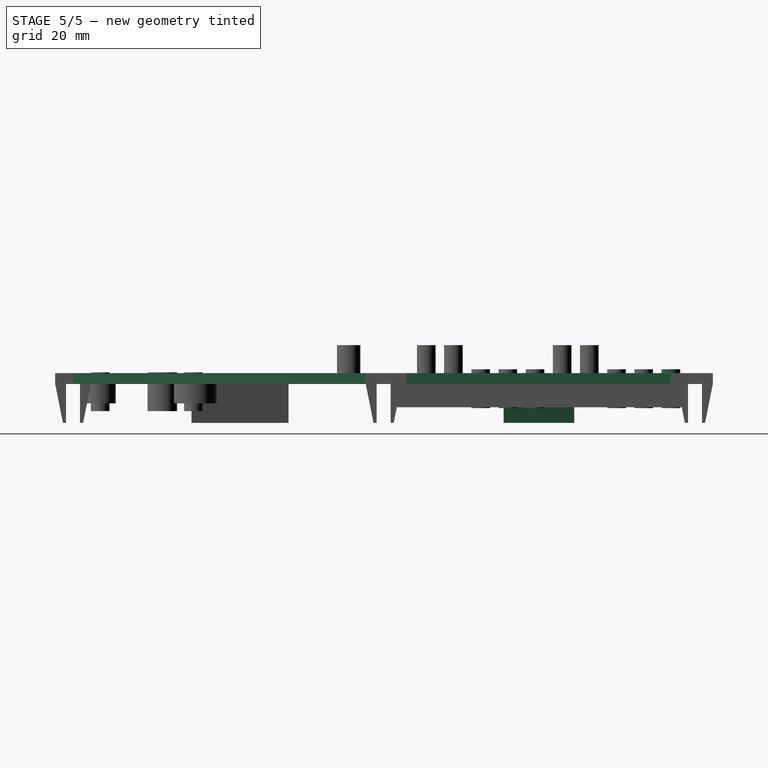
[diagram: stage 5 of 5 — right view after this stage's code; geometry added in this stage tinted green]
FEATURE [Sketcher::SketchObject] Sketch
  FullyConstrained = true
  sketch-geometry (52):
    g0: LineSegment StartX=80 StartY=80 StartZ=0 EndX=74 EndY=80 EndZ=0
    g1: LineSegment StartX=80 StartY=80 StartZ=0 EndX=80 EndY=74 EndZ=0
    g2: LineSegment StartX=0 StartY=80 StartZ=0 EndX=6 EndY=80 EndZ=0
    g3: LineSegment StartX=80 StartY=0 StartZ=0 EndX=80 EndY=6 EndZ=0
    g4: LineSegment StartX=0 StartY=0 StartZ=0 EndX=0 EndY=6 EndZ=0
    g5: LineSegment StartX=0 StartY=0 StartZ=0 EndX=6 EndY=0 EndZ=0
    g6: LineSegment StartX=80 StartY=0 StartZ=0 EndX=74 EndY=0 EndZ=0
    g7: LineSegment StartX=0 StartY=80 StartZ=0 EndX=0 EndY=74 EndZ=0
    g8: LineSegment StartX=54 StartY=58 StartZ=0 EndX=40 EndY=44 EndZ=0
    g9: LineSegment StartX=26 StartY=22 StartZ=0 EndX=40 EndY=36 EndZ=0
    g10: LineSegment StartX=26 StartY=58 StartZ=0 EndX=40 EndY=44 EndZ=0
    g11: LineSegment StartX=6 StartY=70 StartZ=0 EndX=10 EndY=66 EndZ=0
    g12: LineSegment StartX=40 StartY=36 StartZ=0 EndX=54 EndY=22 EndZ=0
    g13: LineSegment StartX=44 StartY=40 StartZ=0 EndX=54 EndY=30 EndZ=0
    g14: LineSegment StartX=36 StartY=40 StartZ=0 EndX=26 EndY=30 EndZ=0
    g15: LineSegment StartX=44 StartY=40 StartZ=0 EndX=54 EndY=50 EndZ=0
    g16: LineSegment StartX=74 StartY=10 StartZ=0 EndX=74 EndY=70 EndZ=0
    g17: LineSegment StartX=6 StartY=70 StartZ=0 EndX=6 EndY=10 EndZ=0
    g18: LineSegment StartX=6 StartY=80 StartZ=0 EndX=74 EndY=80 EndZ=0
    g19: LineSegment StartX=80 StartY=74 StartZ=0 EndX=80 EndY=6 EndZ=0
    g20: LineSegment StartX=74 StartY=0 StartZ=0 EndX=6 EndY=0 EndZ=0
    g21: LineSegment StartX=0 StartY=6 StartZ=0 EndX=0 EndY=74 EndZ=0
    g22: LineSegment StartX=10 StartY=66 StartZ=0 EndX=10 EndY=14 EndZ=0
    g23: LineSegment StartX=70 StartY=66 StartZ=0 EndX=70 EndY=14 EndZ=0
    g24: LineSegment StartX=26 StartY=74 StartZ=0 EndX=54 EndY=74 EndZ=0
    g25: LineSegment StartX=26 StartY=50 StartZ=0 EndX=36 EndY=40 EndZ=0
    g26: LineSegment StartX=70 StartY=66 StartZ=0 EndX=74 EndY=70 EndZ=0
    g27: LineSegment StartX=6 StartY=10 StartZ=0 EndX=6 EndY=7 EndZ=0
    g28: LineSegment StartX=10 StartY=14 StartZ=0 EndX=10 EndY=11 EndZ=0
    g29: LineSegment StartX=70 StartY=14 StartZ=0 EndX=70 EndY=11 EndZ=0
    g30: LineSegment StartX=74 StartY=10 StartZ=0 EndX=74 EndY=7 EndZ=0
    g31: LineSegment StartX=26 StartY=3 StartZ=0 EndX=54 EndY=3 EndZ=0
    g32: LineSegment StartX=6 StartY=7 StartZ=0 EndX=10 EndY=11 EndZ=0
    g33: LineSegment StartX=70 StartY=11 StartZ=0 EndX=74 EndY=7 EndZ=0
    g34: LineSegment StartX=26 StartY=74 StartZ=0 EndX=24 EndY=74 EndZ=0
    g35: LineSegment StartX=54 StartY=74 StartZ=0 EndX=56 EndY=74 EndZ=0
    g36: LineSegment StartX=54 StartY=3 StartZ=0 EndX=56 EndY=3 EndZ=0
    g37: LineSegment StartX=26 StartY=3 StartZ=0 EndX=24 EndY=3 EndZ=0
    g38: LineSegment StartX=54 StartY=58 StartZ=0 EndX=56 EndY=60 EndZ=0
    g39: LineSegment StartX=54 StartY=50 StartZ=0 EndX=56 EndY=52 EndZ=0
    g40: LineSegment StartX=26 StartY=58 StartZ=0 EndX=24 EndY=60 EndZ=0
    g41: LineSegment StartX=26 StartY=50 StartZ=0 EndX=24 EndY=52 EndZ=0
    g42: LineSegment StartX=26 StartY=30 StartZ=0 EndX=24 EndY=28 EndZ=0
    g43: LineSegment StartX=26 StartY=22 StartZ=0 EndX=24 EndY=20 EndZ=0
    g44: LineSegment StartX=54 StartY=30 StartZ=0 EndX=56 EndY=28 EndZ=0
    g45: LineSegment StartX=54 StartY=22 StartZ=0 EndX=56 EndY=20 EndZ=0
    g46: LineSegment StartX=56 StartY=74 StartZ=0 EndX=56 EndY=60 EndZ=0
    g47: LineSegment StartX=24 StartY=3 StartZ=0 EndX=24 EndY=20 EndZ=0
    g48: LineSegment StartX=56 StartY=52 StartZ=0 EndX=56 EndY=28 EndZ=0
    g49: LineSegment StartX=24 StartY=60 StartZ=0 EndX=24 EndY=74 EndZ=0
    g50: LineSegment StartX=56 StartY=20 StartZ=0 EndX=56 EndY=3 EndZ=0
    g51: LineSegment StartX=24 StartY=28 StartZ=0 EndX=24 EndY=52 EndZ=0
  constraints (132):
    c: Horizontal(g0)
    c: Distance(g0) = 6
    c: Block(g0)
    c: Coincident(g1,g0)
    c: Vertical(g1)
    c: Horizontal(g2)
    c: Vertical(g3)
    c: Distance(g1) = 6
    c: Distance(g2) = 6
    c: Distance(g3) = 6
    c: Block(g2)
    c: Block(g3)
    c: Coincident(g4,g-1)
    c: Vertical(g4)
    c: Coincident(g5,g4)
    c: Horizontal(g5)
    c: Coincident(g6,g3)
    c: Horizontal(g6)
    c: Coincident(g7,g2)
    c: Vertical(g7)
    c: Distance(g7) = 6
    c: Distance(g4) = 6
    c: Distance(g5) = 6
    c: Distance(g6) = 6
    c: Coincident(g8,g10)
    c: Coincident(g14,g25)
    c: Coincident(g9,g12)
    c: Coincident(g15,g13)
    c: Block(g15)
    c: Block(g8)
    c: Block(g14)
    c: Block(g12)
    c: Block(g13)
    c: Block(g9)
    c: Block(g11)
    c: Block(g10)
    c: Block(g16)
    c: Block(g17)
    c: Coincident(g26,g16)
    c: Coincident(g11,g17)
    c: Coincident(g18,g2)
    c: Coincident(g18,g0)
    c: Horizontal(g18)
    c: Coincident(g19,g1)
    c: Coincident(g19,g3)
    c: Vertical(g19)
    c: Coincident(g20,g6)
    c: Coincident(g20,g5)
    c: Horizontal(g20)
    c: Coincident(g21,g4)
    c: Coincident(g21,g7)
    c: Vertical(g21)
    c: Vertical(g22)
    c: Vertical(g23)
    c: Horizontal(g24)
    c: Block(g24)
    c: Block(g22)
    c: Block(g23)
    c: Block(g26)
    c: Block(g25)
    c: Coincident(g22,g11)
    c: Coincident(g23,g26)
    c: Coincident(g27,g17)
    c: Vertical(g27)
    c: Coincident(g28,g22)
    c: Vertical(g28)
    c: Coincident(g29,g23)
    c: Vertical(g29)
    c: Coincident(g30,g16)
    c: Vertical(g30)
    c: Distance(g27) = 3
    c: Distance(g28) = 3
    c: Distance(g29) = 3
    c: Distance(g30) = 3
    c: Horizontal(g31)
    c: Coincident(g32,g27)
    c: Coincident(g32,g28)
    c: Coincident(g33,g29)
    c: Coincident(g33,g30)
    c: Block(g31)
    c: Horizontal(g34)
    c: Horizontal(g35)
    c: Horizontal(g36)
    c: Horizontal(g37)
    c: Distance(g36) = 2
    c: Distance(g37) = 2
    c: Distance(g35) = 2
    c: Distance(g34) = 2
    c: Coincident(g38,g8)
    c: Coincident(g39,g15)
    c: Coincident(g40,g10)
    c: Coincident(g41,g25)
    c: Coincident(g42,g14)
    c: Coincident(g43,g9)
    c: Coincident(g44,g13)
    c: Coincident(g45,g12)
    c: Parallel(g13,g44)
    c: Parallel(g12,g45)
    c: Parallel(g9,g43)
    c: Parallel(g14,g42)
    c: Parallel(g25,g41)
    c: Parallel(g10,g40)
    c: Parallel(g8,g38)
    c: Parallel(g15,g39)
    c: Coincident(g46,g35)
    c: Coincident(g50,g36)
    c: Vertical(g46)
    c: Coincident(g47,g37)
    c: Coincident(g49,g34)
    c: Vertical(g47)
    c: PointOnObject(g44,g46)
    c: PointOnObject(g45,g46)
    c: Block(g36)
    c: Block(g46)
    c: Block(g47)
    c: Block(g43)
    c: Block(g45)
    c: Coincident(g46,g38)
    c: Coincident(g48,g39)
    c: Coincident(g51,g41)
    c: Coincident(g49,g40)
    c: PointOnObject(g48,g44)
    c: PointOnObject(g50,g45)
    c: Coincident(g47,g43)
    c: Coincident(g51,g42)
    c: Block(g38)
    c: Block(g40)
    c: Block(g49)
    c: Block(g48)
    c: Block(g51)
    c: Block(g42)
    c: Block(g50)
FEATURE [Part::Extrusion] Extrude  label="baseFront"
  Base = -> Sketch
  Dir = (0,0,1)
  DirMode = 2
  FaceMakerClass = Part::FaceMakerBullseye
  LengthFwd = 2.8
  LengthRev = 0
  Solid = true
  Symmetric = false
FEATURE [Sketcher::SketchObject] Sketch005
  FullyConstrained = true
  Placement = pos=(0,0,0) rot=(1,0,0;1.5708rad)
  sketch-geometry (10):
    g0: LineSegment StartX=5.2 StartY=-14 StartZ=0 EndX=10.4 EndY=-14 EndZ=0
    g1: LineSegment StartX=10.4 StartY=-14 StartZ=0 EndX=10.4 EndY=-24 EndZ=0
    g2: LineSegment StartX=5.2 StartY=-14 StartZ=0 EndX=5.2 EndY=-24 EndZ=0
    g3: LineSegment StartX=10.4 StartY=-24 StartZ=0 EndX=11.2 EndY=-24 EndZ=0
    g4: LineSegment StartX=5.2 StartY=-24 StartZ=0 EndX=4.4 EndY=-24 EndZ=0
    g5: LineSegment StartX=13.2 StartY=-14 StartZ=0 EndX=13.2 EndY=-11.2 EndZ=0
    g6: LineSegment StartX=2.4 StartY=-14 StartZ=0 EndX=2.4 EndY=-11.2 EndZ=0
    g7: LineSegment StartX=13.2 StartY=-11.2 StartZ=0 EndX=2.4 EndY=-11.2 EndZ=0
    g8: LineSegment StartX=2.4 StartY=-14 StartZ=0 EndX=4.4 EndY=-24 EndZ=0
    g9: LineSegment StartX=13.2 StartY=-14 StartZ=0 EndX=11.2 EndY=-24 EndZ=0
  constraints (26):
    c: Horizontal(g0)
    c: Block(g0)
    c: Coincident(g1,g0)
    c: Vertical(g1)
    c: Coincident(g2,g0)
    c: Vertical(g2)
    c: Distance(g2) = 10
    c: Distance(g1) = 10
    c: Coincident(g3,g1)
    c: Horizontal(g3)
    c: Coincident(g4,g2)
    c: Horizontal(g4)
    c: Distance(g4) = 0.8
    c: Distance(g3) = 0.8
    c: Vertical(g5)
    c: Distance(g5) = 2.8
    c: Vertical(g6)
    c: Coincident(g7,g5)
    c: Horizontal(g7)
    c: Coincident(g8,g4)
    c: Coincident(g9,g3)
    c: Coincident(g7,g6)
    c: Block(g9)
    c: Block(g8)
    c: Block(g6)
    c: Block(g7)
FEATURE [Part::Extrusion] Extrude005  label="hullBrace004"
  Base = -> Sketch005
  Dir = (0,-1,2e-16)
  DirMode = 2
  FaceMakerClass = Part::FaceMakerBullseye
  LengthFwd = 18.2
  LengthRev = 0
  Placement = pos=(32.2,49.1,14) rot=(0,0,1;0rad)
  Solid = true
  Symmetric = false
FEATURE [Sketcher::SketchObject] Sketch010
  FullyConstrained = true
  sketch-geometry (29):
    g0: LineSegment StartX=80 StartY=80 StartZ=0 EndX=74 EndY=80 EndZ=0
    g1: LineSegment StartX=0 StartY=80 StartZ=0 EndX=6 EndY=80 EndZ=0
    g2: LineSegment StartX=18 StartY=0 StartZ=0 EndX=24 EndY=0 EndZ=0
    g3: LineSegment StartX=14.7153 StartY=41.2652 StartZ=0 EndX=6.675 EndY=77 EndZ=0
    g4: LineSegment StartX=24 StartY=0 StartZ=0 EndX=56 EndY=0 EndZ=0
    g5: LineSegment StartX=56 StartY=0 StartZ=0 EndX=62 EndY=0 EndZ=0
    g6: LineSegment StartX=73.475 StartY=77 StartZ=0 EndX=65.4321 EndY=41.5606 EndZ=0
    g7: LineSegment StartX=80 StartY=80 StartZ=0 EndX=62 EndY=0 EndZ=0
    g8: LineSegment StartX=6.675 StartY=77 StartZ=0 EndX=33.4 EndY=77 EndZ=0
    g9: LineSegment StartX=6 StartY=80 StartZ=0 EndX=34 EndY=80 EndZ=0
    g10: LineSegment StartX=74 StartY=80 StartZ=0 EndX=46 EndY=80 EndZ=0
    g11: LineSegment StartX=34 StartY=80 StartZ=0 EndX=40 EndY=80 EndZ=0
    g12: LineSegment StartX=40 StartY=80 StartZ=0 EndX=46 EndY=80 EndZ=0
    g13: LineSegment StartX=0 StartY=80 StartZ=0 EndX=18 EndY=0 EndZ=0
    g14: LineSegment StartX=33.4 StartY=77 StartZ=0 EndX=25.9473 EndY=39.7367 EndZ=0
    g15: LineSegment StartX=25.2 StartY=6 StartZ=0 EndX=37 EndY=65 EndZ=0
    g16: LineSegment StartX=43 StartY=65 StartZ=0 EndX=54.8 EndY=6 EndZ=0
    g17: LineSegment StartX=46.6 StartY=77 StartZ=0 EndX=54.0577 EndY=39.7114 EndZ=0
    g18: LineSegment StartX=25.2 StartY=6 StartZ=0 EndX=37 EndY=6 EndZ=0
    g19: LineSegment StartX=46.6 StartY=77 StartZ=0 EndX=73.475 EndY=77 EndZ=0
    g20: LineSegment StartX=37 StartY=48.6662 StartZ=0 EndX=37 EndY=65 EndZ=0
    g21: LineSegment StartX=43 StartY=48.6662 StartZ=0 EndX=43 EndY=65 EndZ=0
    g22: LineSegment StartX=43 StartY=48.6662 StartZ=0 EndX=43 EndY=6 EndZ=0
    g23: LineSegment StartX=37 StartY=48.6662 StartZ=0 EndX=37 EndY=6 EndZ=0
    g24: LineSegment StartX=43 StartY=6 StartZ=0 EndX=54.8 EndY=6 EndZ=0
    g25: ArcOfCircle CenterX=59.1894 CenterY=44.0532 CenterZ=0 NormalX=0 NormalY=0 NormalZ=1 AngleXU=0 Radius=6.72199 StartAngle=3.84381 EndAngle=5.90329
    g26: ArcOfCircle CenterX=20.8235 CenterY=44.1176 CenterZ=0 NormalX=0 NormalY=0 NormalZ=1 AngleXU=0 Radius=6.7414 StartAngle=3.57848 EndAngle=5.57578
    g27: Circle CenterX=20.8235 CenterY=24.1176 CenterZ=0 NormalX=0 NormalY=0 NormalZ=1 AngleXU=0 Radius=2.4
    g28: Circle CenterX=59.1894 CenterY=24.0532 CenterZ=0 NormalX=0 NormalY=0 NormalZ=1 AngleXU=0 Radius=2.4
  constraints (68):
    c: Horizontal(g0)
    c: Distance(g0) = 6
    c: Block(g0)
    c: Horizontal(g1)
    c: Distance(g1) = 6
    c: Block(g1)
    c: Horizontal(g2)
    c: Distance(g2) = 6
    c: Coincident(g4,g2)
    c: Horizontal(g4)
    c: Distance(g4) = 32
    c: Coincident(g5,g4)
    c: Horizontal(g5)
    c: Distance(g5) = 6
    c: Coincident(g7,g0)
    c: Coincident(g7,g5)
    c: Horizontal(g8)
    c: Block(g8)
    c: Coincident(g3,g8)
    c: Coincident(g6,g19)
    c: Coincident(g9,g1)
    c: Horizontal(g9)
    c: Distance(g9) = 28
    c: Coincident(g10,g0)
    c: Horizontal(g10)
    c: Distance(g10) = 28
    c: Coincident(g11,g9)
    c: Horizontal(g11)
    c: Distance(g11) = 6
    c: Coincident(g12,g11)
    c: Coincident(g12,g10)
    c: Horizontal(g12)
    c: Block(g4)
    c: Coincident(g13,g1)
    c: Coincident(g13,g2)
    c: Coincident(g15,g18)
    c: Coincident(g16,g24)
    c: Block(g18)
    c: Block(g6)
    c: Block(g3)
    c: Block(g17)
    c: Block(g14)
    c: Block(g15)
    c: Block(g16)
    c: Coincident(g19,g17)
    c: Coincident(g8,g14)
    c: Vertical(g20)
    c: Vertical(g21)
    c: Vertical(g22)
    c: Vertical(g23)
    c: Block(g22)
    c: Block(g23)
    c: Block(g20)
    c: Block(g21)
    c: Coincident(g16,g21)
    c: Coincident(g15,g20)
    c: PointOnObject(g22,g18)
    c: Coincident(g18,g23)
    c: PointOnObject(g24,g22)
    c: Block(g24)
    c: Block(g25)
    c: Block(g26)
    c: Coincident(g6,g25)
    c: Coincident(g17,g25)
    c: Coincident(g14,g26)
    c: Coincident(g3,g26)
    c: Block(g28)
    c: Block(g27)
FEATURE [Part::Extrusion] Extrude010  label="baseBack"
  Base = -> Sketch010
  Dir = (0,0,1)
  DirMode = 2
  FaceMakerClass = Part::FaceMakerBullseye
  LengthFwd = 2.8
  LengthRev = 0
  Placement = pos=(0,-80,0) rot=(0,0,1;0rad)
  Solid = true
  Symmetric = false
FEATURE [Part::Cylinder] Cylinder  label="threadedInsertHole"
  Angle = 360
  AttacherType = Attacher::AttachEngine3D
  FirstAngle = 0
  Height = 10
  Placement = pos=(64,74,0) rot=(0,0,1;0rad)
  Radius = 2.4
  SecondAngle = 0
FEATURE [Part::Cylinder] Cylinder001  label="threadedInsertHole001"
  Angle = 360
  AttacherType = Attacher::AttachEngine3D
  FirstAngle = 0
  Height = 10
  Placement = pos=(16,67,0) rot=(0,0,1;0rad)
  Radius = 2.4
  SecondAngle = 0
FEATURE [Part::Cylinder] Cylinder002  label="threadedInsertHole002"
  Angle = 360
  AttacherType = Attacher::AttachEngine3D
  FirstAngle = 0
  Height = 10
  Placement = pos=(16,60,0) rot=(0,0,1;0rad)
  Radius = 2.4
  SecondAngle = 0
FEATURE [Part::Cylinder] Cylinder003  label="threadedInsertHole003"
  Angle = 360
  AttacherType = Attacher::AttachEngine3D
  FirstAngle = 0
  Height = 10
  Placement = pos=(16,32,0) rot=(0,0,1;0rad)
  Radius = 2.4
  SecondAngle = 0
FEATURE [Part::Cylinder] Cylinder004  label="threadedInsertHole004"
  Angle = 360
  AttacherType = Attacher::AttachEngine3D
  FirstAngle = 0
  Height = 10
  Placement = pos=(16,25,0) rot=(0,0,1;0rad)
  Radius = 2.4
  SecondAngle = 0
FEATURE [Part::MultiFuse] Fusion  label="threadedInsertHolesFront"
  Placement = pos=(0,0,-6.2) rot=(0,0,1;0rad)
  Shapes = -> [Cylinder011,Cylinder010,Cylinder009,Cylinder008,Cylinder007,Cylinder,Cylinder006,Cylinder001,Cylinder002,Cylinder005,Cylinder003,Cylinder004]
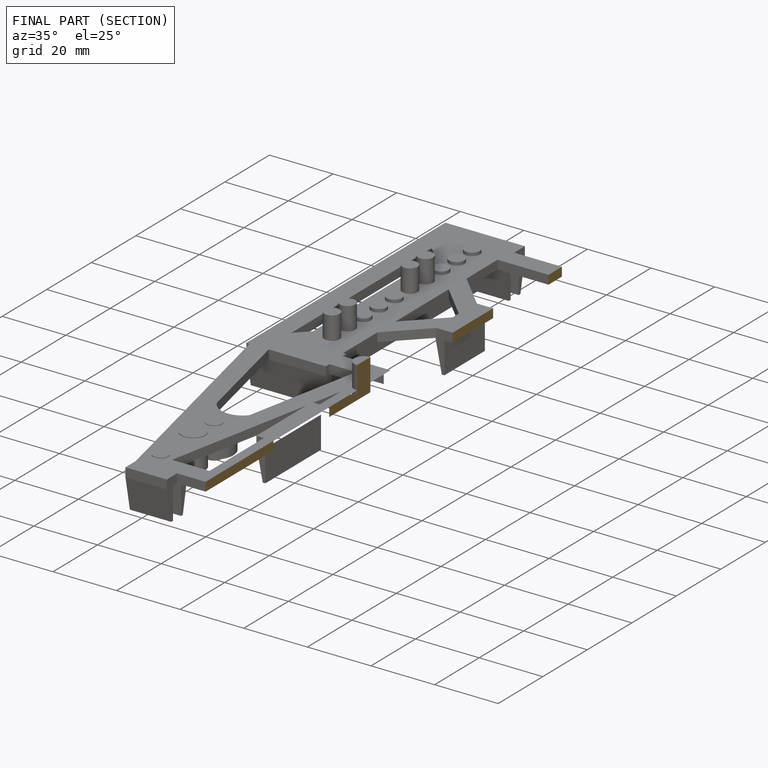
[diagram: finished part — half-section view (interior)]
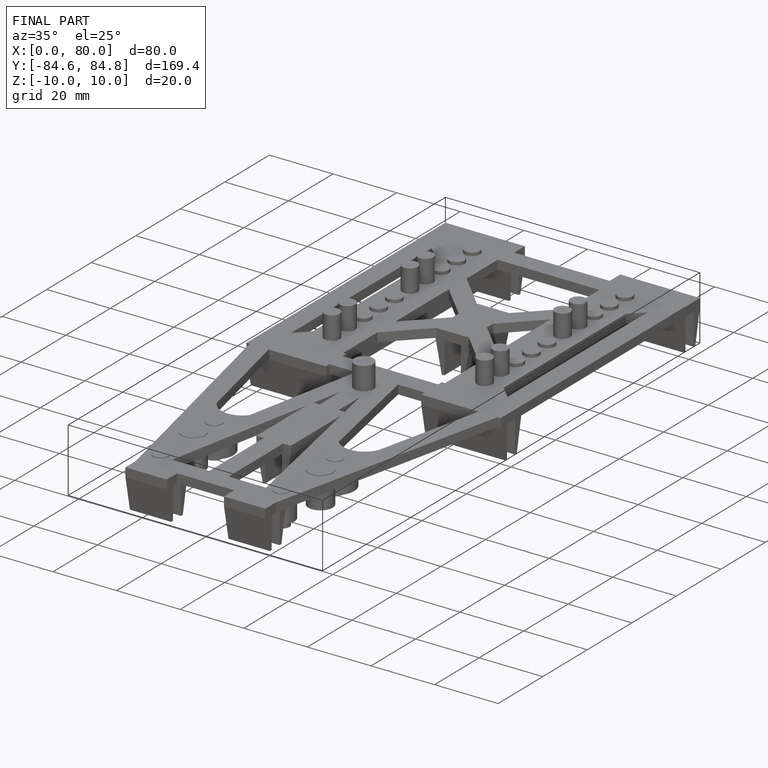
[diagram: finished part — iso view with bounding-box wireframe]
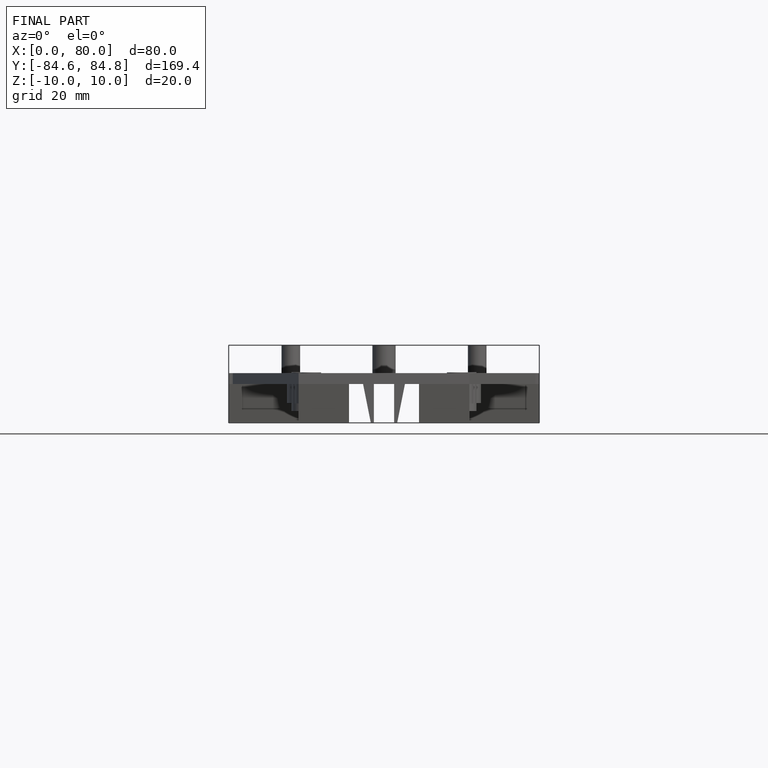
[diagram: finished part — front view with bounding-box wireframe]
